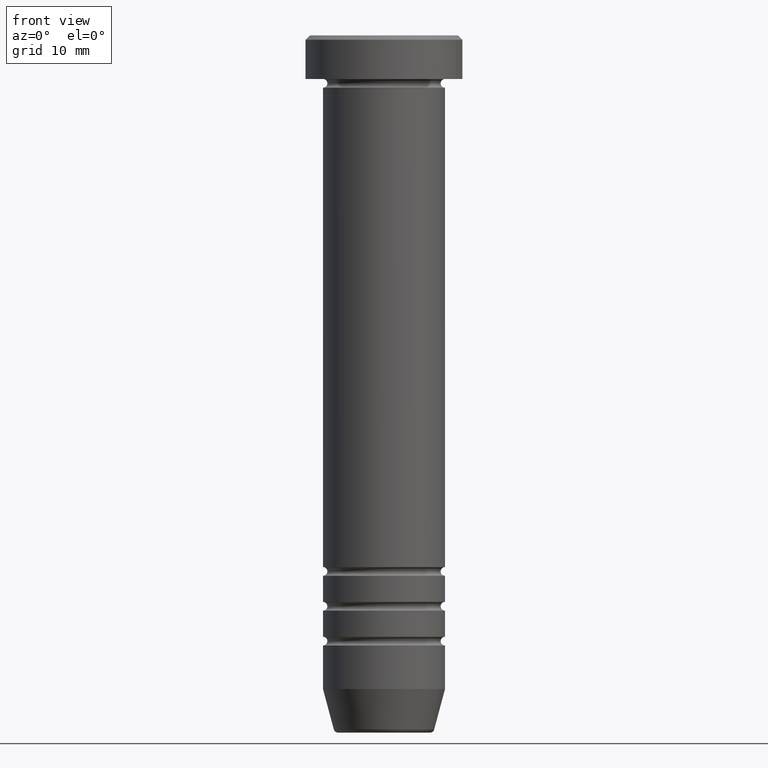
[diagram: clean part render]
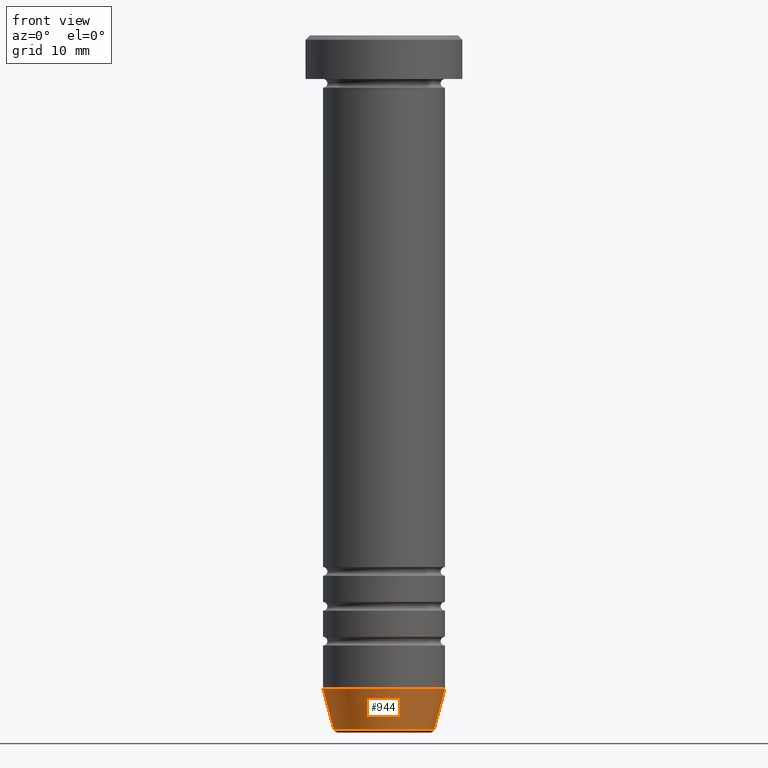
[diagram: same view with one face highlighted and labeled with its STEP entity id]
A machine part, front view. The second image highlights one B-rep face of the part: STEP entity #944.
In plain terms, the highlighted conical surface has half-angle 15 deg.
Its self-contained STEP definition (entity closure, byte-faithful):
#3 = DIRECTION ( 'NONE',  ( -0.000000000000000000, -0.000000000000000000, 1.000000000000000000 ) ) ;
#10 = LINE ( 'NONE', #997, #271 ) ;
#172 = CARTESIAN_POINT ( 'NONE',  ( 7.000000000000000000, 0.000000000000000000, -74.99999999999998579 ) ) ;
#175 = CARTESIAN_POINT ( 'NONE',  ( 0.000000000000000000, 0.000000000000000000, -74.99999999999998579 ) ) ;
#234 = CONICAL_SURFACE ( 'NONE', #439, 5.660254037844381081, 0.2617993877991502405 ) ;
#243 = DIRECTION ( 'NONE',  ( 1.000000000000000000, 0.000000000000000000, 0.000000000000000000 ) ) ;
#271 = VECTOR ( 'NONE', #580, 1000.000000000000114 ) ;
#277 = DIRECTION ( 'NONE',  ( 1.000000000000000000, 0.000000000000000000, 0.000000000000000000 ) ) ;
#281 = ORIENTED_EDGE ( 'NONE', *, *, #989, .T. ) ;
#282 = CARTESIAN_POINT ( 'NONE',  ( 0.000000000000000000, 0.000000000000000000, -79.62940952255125637 ) ) ;
#296 = EDGE_LOOP ( 'NONE', ( #394, #281, #341, #644 ) ) ;
#299 = CARTESIAN_POINT ( 'NONE',  ( 5.759553456999433330, 0.000000000000000000, -79.62940952255125637 ) ) ;
#333 = AXIS2_PLACEMENT_3D ( 'NONE', #175, #3, #243 ) ;
#341 = ORIENTED_EDGE ( 'NONE', *, *, #595, .T. ) ;
#342 = LINE ( 'NONE', #900, #902 ) ;
#354 = VERTEX_POINT ( 'NONE', #299 ) ;
#355 = CARTESIAN_POINT ( 'NONE',  ( 0.000000000000000000, 0.000000000000000000, -79.99999999999998579 ) ) ;
#366 = CARTESIAN_POINT ( 'NONE',  ( -7.000000000000000000, 8.572527594031473190E-16, -74.99999999999998579 ) ) ;
#394 = ORIENTED_EDGE ( 'NONE', *, *, #671, .F. ) ;
#414 = CARTESIAN_POINT ( 'NONE',  ( -5.759553456999433330, 7.812973149831951773E-16, -79.62940952255125637 ) ) ;
#439 = AXIS2_PLACEMENT_3D ( 'NONE', #355, #684, #277 ) ;
#448 = VERTEX_POINT ( 'NONE', #172 ) ;
#580 = DIRECTION ( 'NONE',  ( -0.2588190451025214611, 3.169619151431774186E-17, 0.9659258262890679791 ) ) ;
#595 = EDGE_CURVE ( 'NONE', #354, #448, #342, .T. ) ;
#603 = DIRECTION ( 'NONE',  ( -0.000000000000000000, -0.000000000000000000, 1.000000000000000000 ) ) ;
#622 = CIRCLE ( 'NONE', #986, 5.759553456999433330 ) ;
#623 = EDGE_CURVE ( 'NONE', #956, #448, #968, .T. ) ;
#644 = ORIENTED_EDGE ( 'NONE', *, *, #623, .F. ) ;
#668 = FACE_OUTER_BOUND ( 'NONE', #296, .T. ) ;
#671 = EDGE_CURVE ( 'NONE', #722, #956, #10, .T. ) ;
#684 = DIRECTION ( 'NONE',  ( -0.000000000000000000, -0.000000000000000000, 1.000000000000000000 ) ) ;
#722 = VERTEX_POINT ( 'NONE', #414 ) ;
#900 = CARTESIAN_POINT ( 'NONE',  ( 5.660254037844381081, 0.000000000000000000, -79.99999999999998579 ) ) ;
#902 = VECTOR ( 'NONE', #1002, 1000.000000000000114 ) ;
#932 = DIRECTION ( 'NONE',  ( -1.000000000000000000, 0.000000000000000000, 0.000000000000000000 ) ) ;
#944 = ADVANCED_FACE ( 'NONE', ( #668 ), #234, .T. ) ;
#956 = VERTEX_POINT ( 'NONE', #366 ) ;
#968 = CIRCLE ( 'NONE', #333, 7.000000000000000000 ) ;
#986 = AXIS2_PLACEMENT_3D ( 'NONE', #282, #603, #932 ) ;
#989 = EDGE_CURVE ( 'NONE', #722, #354, #622, .T. ) ;
#997 = CARTESIAN_POINT ( 'NONE',  ( -5.660254037844381081, 6.931811989807003364E-16, -79.99999999999998579 ) ) ;
#1002 = DIRECTION ( 'NONE',  ( 0.2588190451025214611, 0.000000000000000000, 0.9659258262890679791 ) ) ;